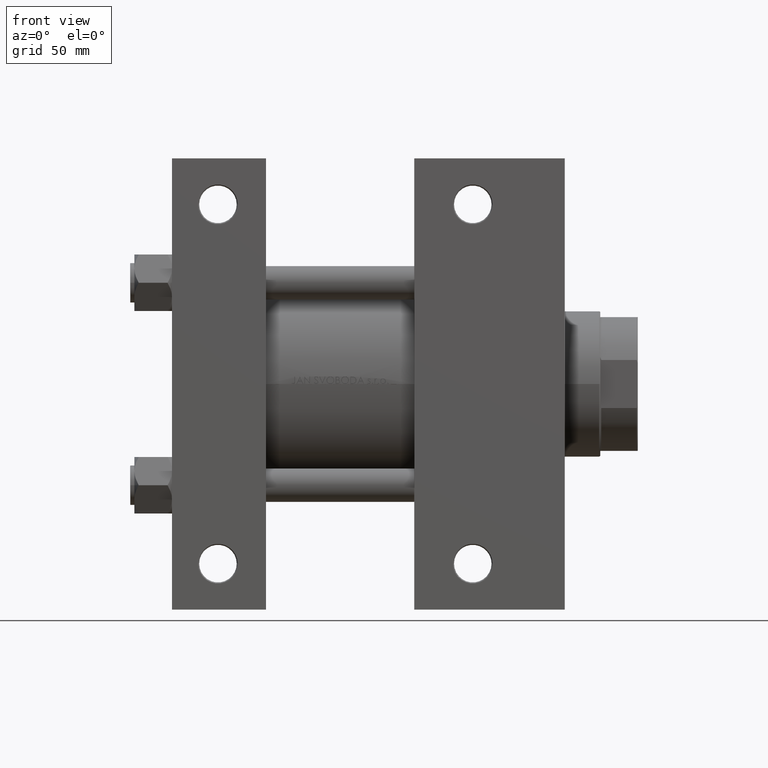
[diagram: clean part render]
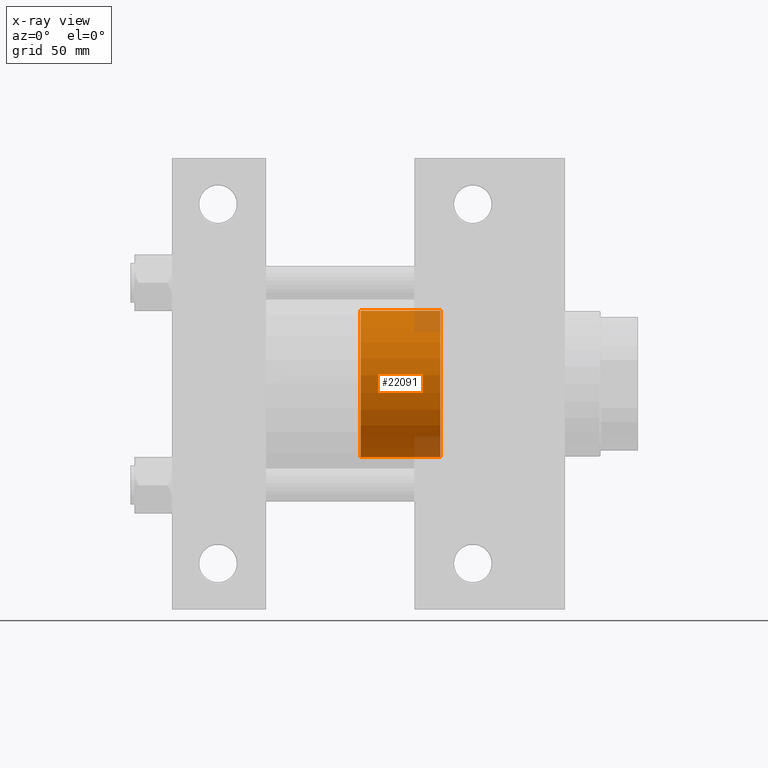
[diagram: x-ray — body ghosted, one internal face saturated and labeled with its STEP entity id]
A machine part, front view, then the same camera in x-ray: the body is ghosted and one INTERNAL B-rep face — a face not visible from any outside direction — is saturated and labeled: STEP entity #22091.
In plain terms, the highlighted cylindrical surface (partial cylindrical patch) has radius 35 mm, axis along (1, 0, 0).
Its self-contained STEP definition (entity closure, byte-faithful):
#573 = CARTESIAN_POINT ( 'NONE',  ( -35.00000000000000711, 4.286263797015736496E-15, 38.19999999999999574 ) ) ;
#1640 = VECTOR ( 'NONE', #13791, 1000.000000000000000 ) ;
#3794 = ORIENTED_EDGE ( 'NONE', *, *, #4252, .T. ) ;
#3805 = CARTESIAN_POINT ( 'NONE',  ( 0.000000000000000000, 0.000000000000000000, -98.99494936611667129 ) ) ;
#4252 = EDGE_CURVE ( 'NONE', #26241, #47885, #34755, .T. ) ;
#5096 = CARTESIAN_POINT ( 'NONE',  ( 0.000000000000000000, 0.000000000000000000, 0.000000000000000000 ) ) ;
#6433 = DIRECTION ( 'NONE',  ( 1.000000000000000000, 0.000000000000000000, 0.000000000000000000 ) ) ;
#6993 = VERTEX_POINT ( 'NONE', #41845 ) ;
#9674 = EDGE_CURVE ( 'NONE', #6993, #25580, #36600, .T. ) ;
#10781 = ORIENTED_EDGE ( 'NONE', *, *, #9674, .F. ) ;
#11055 = AXIS2_PLACEMENT_3D ( 'NONE', #19629, #34493, #6433 ) ;
#11085 = FACE_OUTER_BOUND ( 'NONE', #28335, .T. ) ;
#11321 = DIRECTION ( 'NONE',  ( -0.000000000000000000, -0.000000000000000000, 1.000000000000000000 ) ) ;
#13791 = DIRECTION ( 'NONE',  ( -0.000000000000000000, -0.000000000000000000, 1.000000000000000000 ) ) ;
#14189 = VECTOR ( 'NONE', #14448, 1000.000000000000000 ) ;
#14448 = DIRECTION ( 'NONE',  ( -0.000000000000000000, -0.000000000000000000, 1.000000000000000000 ) ) ;
#15535 = DIRECTION ( 'NONE',  ( -0.000000000000000000, -0.000000000000000000, -1.000000000000000000 ) ) ;
#17375 = CARTESIAN_POINT ( 'NONE',  ( 35.00000000000000711, 0.000000000000000000, -98.99494936611667129 ) ) ;
#18857 = DIRECTION ( 'NONE',  ( 1.000000000000000000, 0.000000000000000000, 0.000000000000000000 ) ) ;
#19629 = CARTESIAN_POINT ( 'NONE',  ( 0.000000000000000000, 0.000000000000000000, 38.19999999999999574 ) ) ;
#19670 = DIRECTION ( 'NONE',  ( 1.000000000000000000, 0.000000000000000000, 0.000000000000000000 ) ) ;
#22091 = ADVANCED_FACE ( 'NONE', ( #11085 ), #33001, .F. ) ;
#22674 = CARTESIAN_POINT ( 'NONE',  ( -35.00000000000000711, 4.286263797015736496E-15, 0.000000000000000000 ) ) ;
#24503 = CARTESIAN_POINT ( 'NONE',  ( -35.00000000000000711, 4.286263797015736496E-15, -98.99494936611667129 ) ) ;
#24730 = CIRCLE ( 'NONE', #43344, 35.00000000000000711 ) ;
#25580 = VERTEX_POINT ( 'NONE', #31093 ) ;
#26241 = VERTEX_POINT ( 'NONE', #22674 ) ;
#26554 = CIRCLE ( 'NONE', #11055, 35.00000000000000711 ) ;
#28335 = EDGE_LOOP ( 'NONE', ( #44385, #3794, #39180, #10781 ) ) ;
#31093 = CARTESIAN_POINT ( 'NONE',  ( 35.00000000000000711, 0.000000000000000000, 38.19999999999999574 ) ) ;
#32840 = EDGE_CURVE ( 'NONE', #6993, #26241, #24730, .T. ) ;
#33001 = CYLINDRICAL_SURFACE ( 'NONE', #42450, 35.00000000000000711 ) ;
#34493 = DIRECTION ( 'NONE',  ( -0.000000000000000000, -0.000000000000000000, -1.000000000000000000 ) ) ;
#34755 = LINE ( 'NONE', #24503, #1640 ) ;
#36600 = LINE ( 'NONE', #17375, #14189 ) ;
#39180 = ORIENTED_EDGE ( 'NONE', *, *, #46403, .F. ) ;
#41845 = CARTESIAN_POINT ( 'NONE',  ( 35.00000000000000711, 0.000000000000000000, 0.000000000000000000 ) ) ;
#42450 = AXIS2_PLACEMENT_3D ( 'NONE', #3805, #11321, #18857 ) ;
#43344 = AXIS2_PLACEMENT_3D ( 'NONE', #5096, #15535, #19670 ) ;
#44385 = ORIENTED_EDGE ( 'NONE', *, *, #32840, .T. ) ;
#46403 = EDGE_CURVE ( 'NONE', #25580, #47885, #26554, .T. ) ;
#47885 = VERTEX_POINT ( 'NONE', #573 ) ;